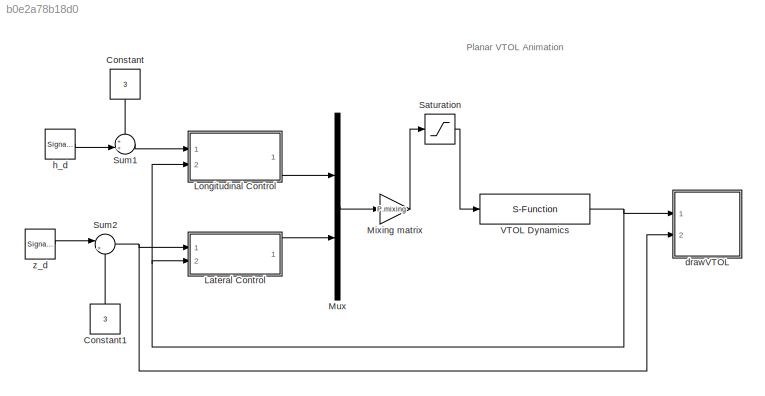
MODEL slx_b0e2a78b18d0
KIND model
CONFIG AbsTol = auto
CONFIG FixedStep = auto
CONFIG InitFcn = param
CONFIG MaxStep = auto
CONFIG MinStep = auto
CONFIG RelTol = 1e-3
CONFIG SampleTimeConstraint = Unconstrained
CONFIG Solver = ode45
CONFIG SolverMode = Auto
CONFIG SolverName = ode45
CONFIG StartTime = 0.0
CONFIG StopTime = 200
BLOCK [Constant] Constant
  Value = 3
BLOCK [Constant] Constant1
  Value = 3
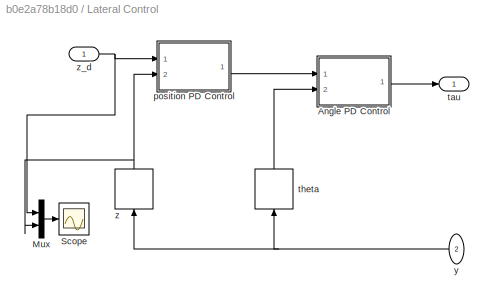
BLOCK [SubSystem] Lateral Control
  Ports = [2, 1]
  RequestExecContextInheritance = off
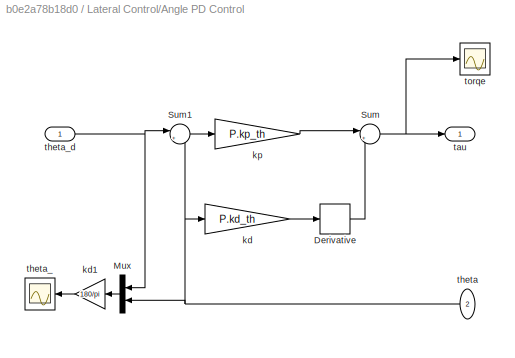
BLOCK [SubSystem] Lateral Control/Angle PD Control 
  Ports = [2, 1]
  RequestExecContextInheritance = off
BLOCK [Derivative] Lateral Control/Angle PD Control /Derivative
BLOCK [Mux] Lateral Control/Angle PD Control /Mux
  DisplayOption = bar
  Inputs = 2
  Ports = [2, 1]
BLOCK [Sum] Lateral Control/Angle PD Control /Sum
  IconShape = round
  InputSameDT = off
  Inputs = |+-
  OutDataTypeStr = Inherit: Inherit via internal rule
  Ports = [2, 1]
  SaturateOnIntegerOverflow = off
BLOCK [Sum] Lateral Control/Angle PD Control /Sum1
  IconShape = round
  InputSameDT = off
  Inputs = |+-
  OutDataTypeStr = Inherit: Inherit via internal rule
  Ports = [2, 1]
  SaturateOnIntegerOverflow = off
BLOCK [Gain] Lateral Control/Angle PD Control /kd
  Gain = P.kd_th
  OutDataTypeStr = Inherit: Inherit via internal rule
  ParamDataTypeStr = Inherit: Inherit via internal rule
  SaturateOnIntegerOverflow = off
BLOCK [Gain] Lateral Control/Angle PD Control /kd1
  Gain = 180/pi
  OutDataTypeStr = Inherit: Inherit via internal rule
  ParamDataTypeStr = Inherit: Inherit via internal rule
  SaturateOnIntegerOverflow = off
BLOCK [Gain] Lateral Control/Angle PD Control /kp
  Gain = P.kp_th
  OutDataTypeStr = Inherit: Inherit via internal rule
  ParamDataTypeStr = Inherit: Inherit via internal rule
  SaturateOnIntegerOverflow = off
BLOCK [Outport] Lateral Control/Angle PD Control /tau
  IconDisplay = Port number
BLOCK [Inport] Lateral Control/Angle PD Control /theta
  IconDisplay = Port number
  Port = 2
BLOCK [Scope] Lateral Control/Angle PD Control /theta_
  DataFormat = StructureWithTime
  Floating = off
  NumInputPorts = 1
  Ports = [1]
  SampleTime = 0
  SaveName = ScopeData1
  TimeRange = 200
  YMax = 1.5
  YMin = -1.5
BLOCK [Inport] Lateral Control/Angle PD Control /theta_d
  IconDisplay = Port number
BLOCK [Scope] Lateral Control/Angle PD Control /torqe
  DataFormat = StructureWithTime
  Floating = off
  NumInputPorts = 1
  Ports = [1]
  SampleTime = 0
  YMax = 1
  YMin = 0.15
BLOCK [Mux] Lateral Control/Mux
  DisplayOption = bar
  Inputs = 2
  Ports = [2, 1]
BLOCK [Scope] Lateral Control/Scope
  Floating = off
  NumInputPorts = 1
  Ports = [1]
  SaveName = ScopeData2
  YMax = 7
  YMin = -1
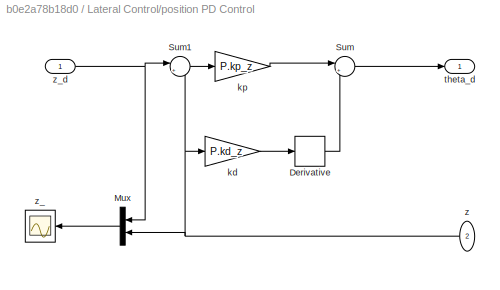
BLOCK [SubSystem] Lateral Control/position PD Control
  Ports = [2, 1]
  RequestExecContextInheritance = off
BLOCK [Derivative] Lateral Control/position PD Control/Derivative
BLOCK [Mux] Lateral Control/position PD Control/Mux
  DisplayOption = bar
  Inputs = 2
  Ports = [2, 1]
BLOCK [Sum] Lateral Control/position PD Control/Sum
  IconShape = round
  InputSameDT = off
  Inputs = |+-
  OutDataTypeStr = Inherit: Inherit via internal rule
  Ports = [2, 1]
  SaturateOnIntegerOverflow = off
BLOCK [Sum] Lateral Control/position PD Control/Sum1
  IconShape = round
  InputSameDT = off
  Inputs = |+-
  OutDataTypeStr = Inherit: Inherit via internal rule
  Ports = [2, 1]
  SaturateOnIntegerOverflow = off
BLOCK [Gain] Lateral Control/position PD Control/kd
  Gain = P.kd_z
  OutDataTypeStr = Inherit: Inherit via internal rule
  ParamDataTypeStr = Inherit: Inherit via internal rule
  SaturateOnIntegerOverflow = off
BLOCK [Gain] Lateral Control/position PD Control/kp
  Gain = P.kp_z
  OutDataTypeStr = Inherit: Inherit via internal rule
  ParamDataTypeStr = Inherit: Inherit via internal rule
  SaturateOnIntegerOverflow = off
BLOCK [Outport] Lateral Control/position PD Control/theta_d
  IconDisplay = Port number
BLOCK [Inport] Lateral Control/position PD Control/z
  IconDisplay = Port number
  Port = 2
BLOCK [Scope] Lateral Control/position PD Control/z_
  DataFormat = StructureWithTime
  Floating = off
  NumInputPorts = 1
  Ports = [1]
  SampleTime = 0
  SaveName = ScopeData1
  TimeRange = 200
  YMax = 7
  YMin = -1
BLOCK [Inport] Lateral Control/position PD Control/z_d
  IconDisplay = Port number
BLOCK [Outport] Lateral Control/tau
  IconDisplay = Port number
BLOCK [Selector] Lateral Control/theta
  Indices = [3]
  InputPortWidth = 3
  Ports = [1, 1]
BLOCK [Inport] Lateral Control/y
  IconDisplay = Port number
  Port = 2
BLOCK [Selector] Lateral Control/z
  Indices = [1]
  InputPortWidth = 3
  Ports = [1, 1]
BLOCK [Inport] Lateral Control/z_d
  IconDisplay = Port number
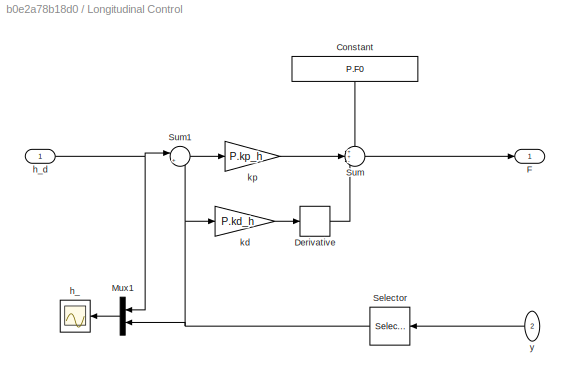
BLOCK [SubSystem] Longitudinal Control
  Ports = [2, 1]
  RequestExecContextInheritance = off
BLOCK [Constant] Longitudinal Control/Constant
  Value = P.F0
BLOCK [Derivative] Longitudinal Control/Derivative
BLOCK [Outport] Longitudinal Control/F
  IconDisplay = Port number
BLOCK [Mux] Longitudinal Control/Mux1
  DisplayOption = bar
  Inputs = 2
  Ports = [2, 1]
BLOCK [Selector] Longitudinal Control/Selector
  Indices = [2]
  InputPortWidth = 3
  Ports = [1, 1]
BLOCK [Sum] Longitudinal Control/Sum
  IconShape = round
  InputSameDT = off
  Inputs = ++-
  OutDataTypeStr = Inherit: Inherit via internal rule
  Ports = [3, 1]
  SaturateOnIntegerOverflow = off
BLOCK [Sum] Longitudinal Control/Sum1
  IconShape = round
  InputSameDT = off
  Inputs = |+-
  OutDataTypeStr = Inherit: Inherit via internal rule
  Ports = [2, 1]
  SaturateOnIntegerOverflow = off
BLOCK [Scope] Longitudinal Control/h_
  DataFormat = StructureWithTime
  Floating = off
  LimitDataPoints = off
  NumInputPorts = 1
  Ports = [1]
  SampleTime = 0
  SaveName = ScopeData1
  TimeRange = 200
  YMax = 6
  YMin = 0
BLOCK [Inport] Longitudinal Control/h_d
  IconDisplay = Port number
BLOCK [Gain] Longitudinal Control/kd
  Gain = P.kd_h
  OutDataTypeStr = Inherit: Inherit via internal rule
  ParamDataTypeStr = Inherit: Inherit via internal rule
  SaturateOnIntegerOverflow = off
BLOCK [Gain] Longitudinal Control/kp
  Gain = P.kp_h
  OutDataTypeStr = Inherit: Inherit via internal rule
  ParamDataTypeStr = Inherit: Inherit via internal rule
  SaturateOnIntegerOverflow = off
BLOCK [Inport] Longitudinal Control/y
  IconDisplay = Port number
  Port = 2
BLOCK [Gain] Mixing matrix
  Gain = P.mixing
  Multiplication = Matrix(K*u)
  OutDataTypeStr = Inherit: Inherit via internal rule
  ParamDataTypeStr = Inherit: Inherit via internal rule
  SaturateOnIntegerOverflow = off
BLOCK [Mux] Mux
  DisplayOption = bar
  Inputs = 2
  Ports = [2, 1]
BLOCK [Saturate] Saturation
  InputPortMap = u0
  LowerLimit = 0
  Ports = [1, 1]
  UpperLimit = 10
BLOCK [Sum] Sum1
  IconShape = round
  InputSameDT = off
  Inputs = ++|
  OutDataTypeStr = Inherit: Inherit via internal rule
  Ports = [2, 1]
  SaturateOnIntegerOverflow = off
BLOCK [Sum] Sum2
  IconShape = round
  InputSameDT = off
  Inputs = |++
  OutDataTypeStr = Inherit: Inherit via internal rule
  Ports = [2, 1]
  SaturateOnIntegerOverflow = off
BLOCK [S-Function] VTOL Dynamics
  FunctionName = VTOL_dynamics
  Parameters = AP
  Ports = [1, 1]
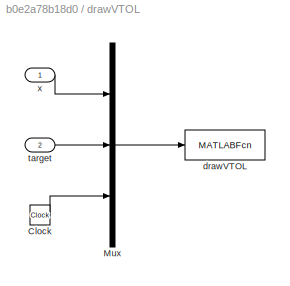
BLOCK [SubSystem] drawVTOL
  Ports = [2]
  RequestExecContextInheritance = off
BLOCK [Clock] drawVTOL/Clock
BLOCK [Mux] drawVTOL/Mux
  DisplayOption = bar
  Inputs = 3
  Ports = [3, 1]
BLOCK [MATLABFcn] drawVTOL/drawVTOL
  MATLABFcn = drawVTOL(u)
  OutputDimensions = 0
  Ports = [1]
  SampleTime = 0.1
BLOCK [Inport] drawVTOL/target
  IconDisplay = Port number
  Port = 2
BLOCK [Inport] drawVTOL/x
  IconDisplay = Port number
BLOCK [SignalGenerator] h_d
  Amplitude = 2.5
  Frequency = .02
  Ports = [0, 1]
  WaveForm = square
BLOCK [SignalGenerator] z_d
  Amplitude = 2.5
  Frequency = .008
  Ports = [0, 1]
  WaveForm = square
ANNOTATION (root): Planar VTOL Animation
LINE Constant1:1 -> Sum2:2
LINE Constant:1 -> Sum1:1
LINE Lateral Control/Angle PD Control /Derivative:1 -> Lateral Control/Angle PD Control /Sum:2
LINE Lateral Control/Angle PD Control /Mux:1 -> Lateral Control/Angle PD Control /kd1:1
LINE Lateral Control/Angle PD Control /Sum1:1 -> Lateral Control/Angle PD Control /kp:1
NET Lateral Control/Angle PD Control /Sum:1 -> Lateral Control/Angle PD Control /tau:1, Lateral Control/Angle PD Control /torqe:1
LINE Lateral Control/Angle PD Control /kd1:1 -> Lateral Control/Angle PD Control /theta_:1
LINE Lateral Control/Angle PD Control /kd:1 -> Lateral Control/Angle PD Control /Derivative:1
LINE Lateral Control/Angle PD Control /kp:1 -> Lateral Control/Angle PD Control /Sum:1
NET Lateral Control/Angle PD Control /theta:1 -> Lateral Control/Angle PD Control /Mux:2, Lateral Control/Angle PD Control /Sum1:2, Lateral Control/Angle PD Control /kd:1
NET Lateral Control/Angle PD Control /theta_d:1 -> Lateral Control/Angle PD Control /Mux:1, Lateral Control/Angle PD Control /Sum1:1
LINE Lateral Control/Angle PD Control :1 -> Lateral Control/tau:1
LINE Lateral Control/Mux:1 -> Lateral Control/Scope:1
LINE Lateral Control/position PD Control/Derivative:1 -> Lateral Control/position PD Control/Sum:2
LINE Lateral Control/position PD Control/Mux:1 -> Lateral Control/position PD Control/z_:1
LINE Lateral Control/position PD Control/Sum1:1 -> Lateral Control/position PD Control/kp:1
LINE Lateral Control/position PD Control/Sum:1 -> Lateral Control/position PD Control/theta_d:1
LINE Lateral Control/position PD Control/kd:1 -> Lateral Control/position PD Control/Derivative:1
LINE Lateral Control/position PD Control/kp:1 -> Lateral Control/position PD Control/Sum:1
NET Lateral Control/position PD Control/z:1 -> Lateral Control/position PD Control/Mux:2, Lateral Control/position PD Control/Sum1:2, Lateral Control/position PD Control/kd:1
NET Lateral Control/position PD Control/z_d:1 -> Lateral Control/position PD Control/Mux:1, Lateral Control/position PD Control/Sum1:1
LINE Lateral Control/position PD Control:1 -> Lateral Control/Angle PD Control :1
LINE Lateral Control/theta:1 -> Lateral Control/Angle PD Control :2
NET Lateral Control/y:1 -> Lateral Control/theta:1, Lateral Control/z:1
NET Lateral Control/z:1 -> Lateral Control/Mux:2, Lateral Control/position PD Control:2
NET Lateral Control/z_d:1 -> Lateral Control/Mux:1, Lateral Control/position PD Control:1
LINE Lateral Control:1 -> Mux:2
LINE Longitudinal Control/Constant:1 -> Longitudinal Control/Sum:1
LINE Longitudinal Control/Derivative:1 -> Longitudinal Control/Sum:3
LINE Longitudinal Control/Mux1:1 -> Longitudinal Control/h_:1
NET Longitudinal Control/Selector:1 -> Longitudinal Control/Mux1:2, Longitudinal Control/Sum1:2, Longitudinal Control/kd:1
LINE Longitudinal Control/Sum1:1 -> Longitudinal Control/kp:1
LINE Longitudinal Control/Sum:1 -> Longitudinal Control/F:1
NET Longitudinal Control/h_d:1 -> Longitudinal Control/Mux1:1, Longitudinal Control/Sum1:1
LINE Longitudinal Control/kd:1 -> Longitudinal Control/Derivative:1
LINE Longitudinal Control/kp:1 -> Longitudinal Control/Sum:2
LINE Longitudinal Control/y:1 -> Longitudinal Control/Selector:1
LINE Longitudinal Control:1 -> Mux:1
LINE Mixing matrix:1 -> Saturation:1
LINE Mux:1 -> Mixing matrix:1
LINE Saturation:1 -> VTOL Dynamics:1
LINE Sum1:1 -> Longitudinal Control:1
NET Sum2:1 -> Lateral Control:1, drawVTOL:2
NET VTOL Dynamics:1 -> Lateral Control:2, Longitudinal Control:2, drawVTOL:1
LINE drawVTOL/Clock:1 -> drawVTOL/Mux:3
LINE drawVTOL/Mux:1 -> drawVTOL/drawVTOL:1
LINE drawVTOL/target:1 -> drawVTOL/Mux:2
LINE drawVTOL/x:1 -> drawVTOL/Mux:1
LINE h_d:1 -> Sum1:2
LINE z_d:1 -> Sum2:1
note: NET lines group one-source signal fan-out (src -> all destinations, sorted); 1:1 wires keep LINE
